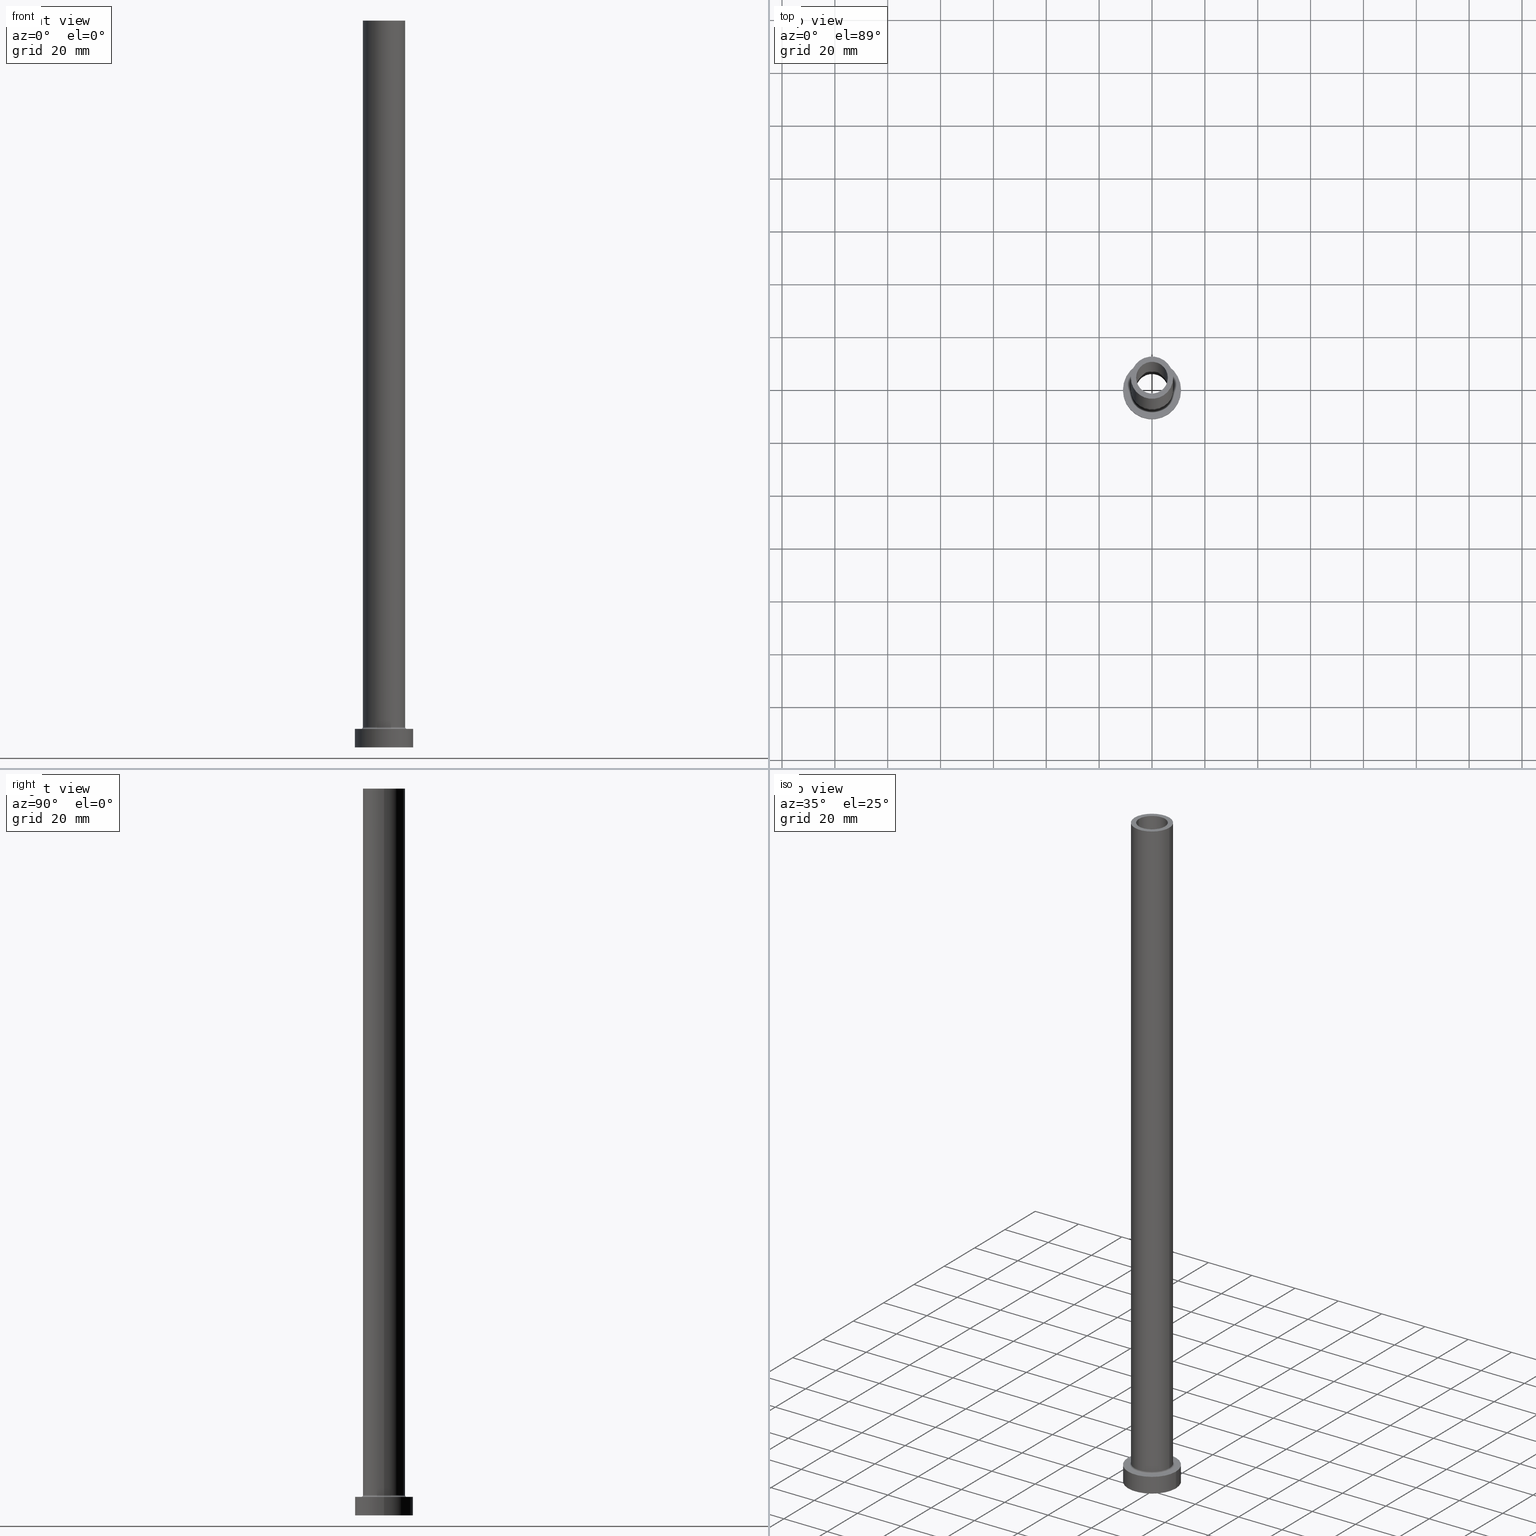
[diagram: canonical four-view strip — front | top / right | iso, engineering-drawing reading convention]
A machine part, canonical four-view strip (front | top / right | iso — engineering-drawing reading convention). The complete STEP part file that produces these views, byte-faithful:
ISO-10303-21;
HEADER;
FILE_DESCRIPTION (( 'STEP AP203' ),
    '1' );
FILE_NAME ('1a4f.STEP',
    '2023-02-13T09:07:13',
    ( '' ),
    ( '' ),
    'SwSTEP 2.0',
    'SolidWorks 2019',
    '' );
FILE_SCHEMA (( 'CONFIG_CONTROL_DESIGN' ));
ENDSEC;

DATA;
#1 = PERSON_AND_ORGANIZATION ( #346, #378 ) ;
#2 = DIRECTION ( 'NONE',  ( 1.000000000000000000, 0.000000000000000000, 0.000000000000000000 ) ) ;
#3 = APPROVAL_DATE_TIME ( #35, #198 ) ;
#4 = AXIS2_PLACEMENT_3D ( 'NONE', #70, #73, #251 ) ;
#5 = FACE_OUTER_BOUND ( 'NONE', #14, .T. ) ;
#6 = SECURITY_CLASSIFICATION_LEVEL ( 'unclassified' ) ;
#7 = DIRECTION ( 'NONE',  ( 1.000000000000000000, 0.000000000000000000, -0.000000000000000000 ) ) ;
#8 = CIRCLE ( 'NONE', #195, 6.000000000000000888 ) ;
#9 = CYLINDRICAL_SURFACE ( 'NONE', #86, 8.000000000000000000 ) ;
#10 = CARTESIAN_POINT ( 'NONE',  ( -8.000000000000000000, 0.000000000000000000, 275.0000000000000000 ) ) ;
#11 = CLOSED_SHELL ( 'NONE', ( #455, #233, #96, #51, #34, #279, #327, #56, #331, #113, #408, #417, #38, #168 ) ) ;
#12 = VERTEX_POINT ( 'NONE', #76 ) ;
#13 = DIRECTION ( 'NONE',  ( -1.000000000000000000, 0.000000000000000000, 0.000000000000000000 ) ) ;
#14 = EDGE_LOOP ( 'NONE', ( #61, #162 ) ) ;
#15 = AXIS2_PLACEMENT_3D ( 'NONE', #291, #157, #369 ) ;
#16 = CARTESIAN_POINT ( 'NONE',  ( 6.150000000000000355, 7.531577814756222064E-16, 230.0000000000000284 ) ) ;
#17 = DIRECTION ( 'NONE',  ( 0.000000000000000000, 0.000000000000000000, 1.000000000000000000 ) ) ;
#18 = DIRECTION ( 'NONE',  ( 0.000000000000000000, 0.000000000000000000, 1.000000000000000000 ) ) ;
#19 = DIRECTION ( 'NONE',  ( -0.000000000000000000, -0.000000000000000000, -1.000000000000000000 ) ) ;
#20 = ORIENTED_EDGE ( 'NONE', *, *, #82, .T. ) ;
#21 = LOCAL_TIME ( 10, 7, 13.00000000000000000, #109 ) ;
#22 = EDGE_CURVE ( 'NONE', #421, #307, #273, .T. ) ;
#23 = DIRECTION ( 'NONE',  ( 0.000000000000000000, 0.000000000000000000, -1.000000000000000000 ) ) ;
#24 = ORIENTED_EDGE ( 'NONE', *, *, #191, .T. ) ;
#25 = DIRECTION ( 'NONE',  ( 0.000000000000000000, 0.000000000000000000, 1.000000000000000000 ) ) ;
#26 = EDGE_LOOP ( 'NONE', ( #450, #149 ) ) ;
#27 = CIRCLE ( 'NONE', #144, 6.150000000000000355 ) ;
#28 = FACE_OUTER_BOUND ( 'NONE', #247, .T. ) ;
#29 = ORIENTED_EDGE ( 'NONE', *, *, #137, .T. ) ;
#30 = CIRCLE ( 'NONE', #219, 6.150000000000000355 ) ;
#31 = VERTEX_POINT ( 'NONE', #110 ) ;
#32 = DATE_AND_TIME ( #361, #339 ) ;
#33 = CARTESIAN_POINT ( 'NONE',  ( -11.00000000000000000, 0.000000000000000000, 0.000000000000000000 ) ) ;
#34 = ADVANCED_FACE ( 'NONE', ( #210 ), #314, .T. ) ;
#35 = DATE_AND_TIME ( #72, #230 ) ;
#36 = ORIENTED_EDGE ( 'NONE', *, *, #117, .F. ) ;
#37 = CC_DESIGN_SECURITY_CLASSIFICATION ( #83, ( #240 ) ) ;
#38 = ADVANCED_FACE ( 'NONE', ( #243, #174 ), #212, .F. ) ;
#39 = APPROVAL_STATUS ( 'not_yet_approved' ) ;
#40 = DIRECTION ( 'NONE',  ( 0.000000000000000000, 0.000000000000000000, -1.000000000000000000 ) ) ;
#41 = UNCERTAINTY_MEASURE_WITH_UNIT (LENGTH_MEASURE( 1.000000000000000082E-05 ), #448, 'distance_accuracy_value', 'NONE');
#42 = DIRECTION ( 'NONE',  ( 0.000000000000000000, 0.000000000000000000, 1.000000000000000000 ) ) ;
#43 = CARTESIAN_POINT ( 'NONE',  ( 0.000000000000000000, 0.000000000000000000, 275.0000000000000000 ) ) ;
#44 = CARTESIAN_POINT ( 'NONE',  ( 0.000000000000000000, 0.000000000000000000, 7.699999999999985079 ) ) ;
#45 = EDGE_CURVE ( 'NONE', #347, #160, #200, .T. ) ;
#46 = CARTESIAN_POINT ( 'NONE',  ( 0.000000000000000000, 0.000000000000000000, 275.0000000000000000 ) ) ;
#47 = DIRECTION ( 'NONE',  ( 0.000000000000000000, 0.000000000000000000, -1.000000000000000000 ) ) ;
#48 = DIRECTION ( 'NONE',  ( 1.000000000000000000, 0.000000000000000000, 0.000000000000000000 ) ) ;
#49 =( GEOMETRIC_REPRESENTATION_CONTEXT ( 3 ) GLOBAL_UNCERTAINTY_ASSIGNED_CONTEXT ( ( #41 ) ) GLOBAL_UNIT_ASSIGNED_CONTEXT ( ( #448, #309, #264 ) ) REPRESENTATION_CONTEXT ( 'NONE', 'WORKASPACE' ) );
#50 = LINE ( 'NONE', #10, #146 ) ;
#51 = ADVANCED_FACE ( 'NONE', ( #115 ), #9, .T. ) ;
#52 = FACE_BOUND ( 'NONE', #201, .T. ) ;
#53 = AXIS2_PLACEMENT_3D ( 'NONE', #396, #363, #356 ) ;
#54 = LINE ( 'NONE', #231, #98 ) ;
#55 = ORIENTED_EDGE ( 'NONE', *, *, #365, .T. ) ;
#56 = ADVANCED_FACE ( 'NONE', ( #282, #427 ), #432, .F. ) ;
#57 = CARTESIAN_POINT ( 'NONE',  ( 0.000000000000000000, 0.000000000000000000, 275.0000000000000000 ) ) ;
#58 = APPROVAL_PERSON_ORGANIZATION ( #276, #449, #211 ) ;
#59 = ORIENTED_EDGE ( 'NONE', *, *, #137, .F. ) ;
#60 = DIRECTION ( 'NONE',  ( 0.000000000000000000, 0.000000000000000000, 1.000000000000000000 ) ) ;
#61 = ORIENTED_EDGE ( 'NONE', *, *, #22, .T. ) ;
#62 = CIRCLE ( 'NONE', #188, 11.00000000000000000 ) ;
#63 = CARTESIAN_POINT ( 'NONE',  ( -11.00000000000000000, 0.000000000000000000, 7.000000000000000000 ) ) ;
#64 = VERTEX_POINT ( 'NONE', #359 ) ;
#65 = CARTESIAN_POINT ( 'NONE',  ( -6.150000000000000355, 0.000000000000000000, 230.0000000000000284 ) ) ;
#66 = VERTEX_POINT ( 'NONE', #33 ) ;
#67 = CIRCLE ( 'NONE', #430, 0.7000000000000000666 ) ;
#68 = PERSON_AND_ORGANIZATION ( #346, #378 ) ;
#69 = CARTESIAN_POINT ( 'NONE',  ( 11.00000000000000000, 1.347111479062088405E-15, 7.000000000000000000 ) ) ;
#70 = CARTESIAN_POINT ( 'NONE',  ( 0.000000000000000000, 0.000000000000000000, 0.000000000000000000 ) ) ;
#71 = CC_DESIGN_DATE_AND_TIME_ASSIGNMENT ( #32, #176, ( #83 ) ) ;
#72 = CALENDAR_DATE ( 2023, 13, 2 ) ;
#73 = DIRECTION ( 'NONE',  ( 0.000000000000000000, 0.000000000000000000, 1.000000000000000000 ) ) ;
#74 = AXIS2_PLACEMENT_3D ( 'NONE', #364, #326, #13 ) ;
#75 = EDGE_CURVE ( 'NONE', #64, #295, #288, .T. ) ;
#76 = CARTESIAN_POINT ( 'NONE',  ( -8.000000000000000000, 0.000000000000000000, 7.699999999999985079 ) ) ;
#77 = AXIS2_PLACEMENT_3D ( 'NONE', #360, #285, #145 ) ;
#78 = PERSON_AND_ORGANIZATION ( #346, #378 ) ;
#79 = CARTESIAN_POINT ( 'NONE',  ( 0.000000000000000000, 0.000000000000000000, 7.000000000000000000 ) ) ;
#80 = EDGE_CURVE ( 'NONE', #66, #394, #62, .T. ) ;
#81 = LINE ( 'NONE', #63, #332 ) ;
#82 = EDGE_CURVE ( 'NONE', #31, #267, #123, .T. ) ;
#83 = SECURITY_CLASSIFICATION ( '', '', #6 ) ;
#84 = CARTESIAN_POINT ( 'NONE',  ( 8.699999999999999289, 0.000000000000000000, 7.699999999999985079 ) ) ;
#85 = CARTESIAN_POINT ( 'NONE',  ( -11.00000000000000000, 0.000000000000000000, 7.000000000000000000 ) ) ;
#86 = AXIS2_PLACEMENT_3D ( 'NONE', #43, #107, #391 ) ;
#87 = CARTESIAN_POINT ( 'NONE',  ( -6.000000000000000888, 0.000000000000000000, 230.0000000000000284 ) ) ;
#88 = ORIENTED_EDGE ( 'NONE', *, *, #45, .T. ) ;
#89 = AXIS2_PLACEMENT_3D ( 'NONE', #46, #47, #330 ) ;
#90 = APPLICATION_CONTEXT ( 'configuration controlled 3d designs of mechanical parts and assemblies' ) ;
#91 = CIRCLE ( 'NONE', #269, 8.000000000000000000 ) ;
#92 = DIRECTION ( 'NONE',  ( 1.000000000000000000, 0.000000000000000000, 0.000000000000000000 ) ) ;
#93 = CARTESIAN_POINT ( 'NONE',  ( 6.150000000000000355, 7.531577814756222064E-16, 247.3948268171891129 ) ) ;
#94 = DIRECTION ( 'NONE',  ( -1.000000000000000000, 0.000000000000000000, 0.000000000000000000 ) ) ;
#95 = ORIENTED_EDGE ( 'NONE', *, *, #237, .T. ) ;
#96 = ADVANCED_FACE ( 'NONE', ( #241 ), #456, .F. ) ;
#97 = CARTESIAN_POINT ( 'NONE',  ( 0.000000000000000000, 0.000000000000000000, 7.000000000000000000 ) ) ;
#98 = VECTOR ( 'NONE', #272, 1000.000000000000000 ) ;
#99 = ORIENTED_EDGE ( 'NONE', *, *, #425, .F. ) ;
#100 = DIRECTION ( 'NONE',  ( -0.000000000000000000, -0.000000000000000000, -1.000000000000000000 ) ) ;
#101 = EDGE_LOOP ( 'NONE', ( #352, #29, #24, #290 ) ) ;
#102 = DIRECTION ( 'NONE',  ( -1.000000000000000000, 0.000000000000000000, 0.000000000000000000 ) ) ;
#103 = ORIENTED_EDGE ( 'NONE', *, *, #172, .T. ) ;
#104 = CALENDAR_DATE ( 2023, 13, 2 ) ;
#105 = DIRECTION ( 'NONE',  ( 1.000000000000000000, 0.000000000000000000, 0.000000000000000000 ) ) ;
#106 = AXIS2_PLACEMENT_3D ( 'NONE', #182, #226, #296 ) ;
#107 = DIRECTION ( 'NONE',  ( -0.000000000000000000, -0.000000000000000000, -1.000000000000000000 ) ) ;
#108 = AXIS2_PLACEMENT_3D ( 'NONE', #354, #318, #147 ) ;
#109 = COORDINATED_UNIVERSAL_TIME_OFFSET ( 1, 0, .AHEAD. ) ;
#110 = CARTESIAN_POINT ( 'NONE',  ( -8.699999999999999289, 1.065442715258197248E-15, 6.999999999999992006 ) ) ;
#111 = COORDINATED_UNIVERSAL_TIME_OFFSET ( 1, 0, .AHEAD. ) ;
#112 = CIRCLE ( 'NONE', #158, 0.6999999999999992895 ) ;
#113 = ADVANCED_FACE ( 'NONE', ( #320, #5 ), #171, .T. ) ;
#114 = APPROVAL_ROLE ( '' ) ;
#115 = FACE_OUTER_BOUND ( 'NONE', #410, .T. ) ;
#116 = AXIS2_PLACEMENT_3D ( 'NONE', #428, #323, #7 ) ;
#117 = EDGE_CURVE ( 'NONE', #443, #12, #434, .T. ) ;
#118 = DIRECTION ( 'NONE',  ( 1.000000000000000000, 0.000000000000000000, 0.000000000000000000 ) ) ;
#119 = DIRECTION ( 'NONE',  ( 1.000000000000000000, 0.000000000000000000, 0.000000000000000000 ) ) ;
#120 = CIRCLE ( 'NONE', #308, 8.000000000000000000 ) ;
#121 = DIRECTION ( 'NONE',  ( -1.000000000000000000, 1.224646799147353207E-16, 0.000000000000000000 ) ) ;
#122 = CYLINDRICAL_SURFACE ( 'NONE', #74, 11.00000000000000000 ) ;
#123 = CIRCLE ( 'NONE', #170, 8.699999999999999289 ) ;
#124 = CARTESIAN_POINT ( 'NONE',  ( 0.000000000000000000, 0.000000000000000000, 7.699999999999985079 ) ) ;
#125 = AXIS2_PLACEMENT_3D ( 'NONE', #293, #442, #398 ) ;
#126 = DIRECTION ( 'NONE',  ( -0.000000000000000000, -0.000000000000000000, -1.000000000000000000 ) ) ;
#127 = ORIENTED_EDGE ( 'NONE', *, *, #386, .T. ) ;
#128 = CARTESIAN_POINT ( 'NONE',  ( -8.000000000000000000, 0.000000000000000000, 275.0000000000000000 ) ) ;
#129 = EDGE_LOOP ( 'NONE', ( #204, #419, #292, #169 ) ) ;
#130 = DIRECTION ( 'NONE',  ( 1.000000000000000000, 0.000000000000000000, 0.000000000000000000 ) ) ;
#131 = CIRCLE ( 'NONE', #125, 6.000000000000000888 ) ;
#132 = ORIENTED_EDGE ( 'NONE', *, *, #194, .T. ) ;
#133 = CYLINDRICAL_SURFACE ( 'NONE', #414, 6.000000000000000888 ) ;
#134 = ORIENTED_EDGE ( 'NONE', *, *, #249, .F. ) ;
#135 = CALENDAR_DATE ( 2023, 13, 2 ) ;
#136 = ORIENTED_EDGE ( 'NONE', *, *, #340, .T. ) ;
#137 = EDGE_CURVE ( 'NONE', #416, #394, #387, .T. ) ;
#138 = PERSON_AND_ORGANIZATION ( #346, #378 ) ;
#139 = DIRECTION ( 'NONE',  ( 0.000000000000000000, 0.000000000000000000, 1.000000000000000000 ) ) ;
#140 = CARTESIAN_POINT ( 'NONE',  ( 0.000000000000000000, 0.000000000000000000, 230.0000000000000284 ) ) ;
#141 = APPROVAL_STATUS ( 'not_yet_approved' ) ;
#142 = DIRECTION ( 'NONE',  ( 1.000000000000000000, 0.000000000000000000, 0.000000000000000000 ) ) ;
#143 = COORDINATED_UNIVERSAL_TIME_OFFSET ( 1, 0, .AHEAD. ) ;
#144 = AXIS2_PLACEMENT_3D ( 'NONE', #189, #17, #184 ) ;
#145 = DIRECTION ( 'NONE',  ( -1.000000000000000000, 0.000000000000000000, 0.000000000000000000 ) ) ;
#146 = VECTOR ( 'NONE', #260, 1000.000000000000000 ) ;
#147 = DIRECTION ( 'NONE',  ( 1.000000000000000000, 0.000000000000000000, -0.000000000000000000 ) ) ;
#148 = DIRECTION ( 'NONE',  ( 0.000000000000000000, 0.000000000000000000, -1.000000000000000000 ) ) ;
#149 = ORIENTED_EDGE ( 'NONE', *, *, #275, .F. ) ;
#150 = CC_DESIGN_PERSON_AND_ORGANIZATION_ASSIGNMENT ( #1, #319, ( #240 ) ) ;
#151 = PLANE ( 'NONE',  #15 ) ;
#152 = EDGE_LOOP ( 'NONE', ( #223, #412 ) ) ;
#153 = DIRECTION ( 'NONE',  ( 0.000000000000000000, 0.000000000000000000, 1.000000000000000000 ) ) ;
#154 = EDGE_CURVE ( 'NONE', #64, #380, #165, .T. ) ;
#155 = DIRECTION ( 'NONE',  ( 1.000000000000000000, 0.000000000000000000, 0.000000000000000000 ) ) ;
#156 = EDGE_LOOP ( 'NONE', ( #383, #103, #335, #382 ) ) ;
#157 = DIRECTION ( 'NONE',  ( 0.000000000000000000, 0.000000000000000000, 1.000000000000000000 ) ) ;
#158 = AXIS2_PLACEMENT_3D ( 'NONE', #258, #254, #121 ) ;
#159 = DIRECTION ( 'NONE',  ( 1.000000000000000000, 0.000000000000000000, 0.000000000000000000 ) ) ;
#160 = VERTEX_POINT ( 'NONE', #16 ) ;
#161 = CARTESIAN_POINT ( 'NONE',  ( 6.150000000000000355, 7.531577814756222064E-16, 0.000000000000000000 ) ) ;
#162 = ORIENTED_EDGE ( 'NONE', *, *, #249, .T. ) ;
#163 = CARTESIAN_POINT ( 'NONE',  ( 0.000000000000000000, 0.000000000000000000, 230.0000000000000284 ) ) ;
#164 = ORIENTED_EDGE ( 'NONE', *, *, #321, .T. ) ;
#165 = CIRCLE ( 'NONE', #429, 6.000000000000000888 ) ;
#166 = CC_DESIGN_APPROVAL ( #449, ( #83 ) ) ;
#167 = VERTEX_POINT ( 'NONE', #85 ) ;
#168 = ADVANCED_FACE ( 'NONE', ( #366 ), #218, .F. ) ;
#169 = ORIENTED_EDGE ( 'NONE', *, *, #365, .F. ) ;
#170 = AXIS2_PLACEMENT_3D ( 'NONE', #79, #284, #105 ) ;
#171 = PLANE ( 'NONE',  #116 ) ;
#172 = EDGE_CURVE ( 'NONE', #160, #347, #27, .T. ) ;
#173 = PERSON_AND_ORGANIZATION ( #346, #378 ) ;
#174 = FACE_OUTER_BOUND ( 'NONE', #344, .T. ) ;
#175 = APPROVAL_PERSON_ORGANIZATION ( #173, #246, #114 ) ;
#176 = DATE_TIME_ROLE ( 'classification_date' ) ;
#177 = DIRECTION ( 'NONE',  ( 0.000000000000000000, 0.000000000000000000, 1.000000000000000000 ) ) ;
#178 = PERSON_AND_ORGANIZATION_ROLE ( 'design_owner' ) ;
#179 = CARTESIAN_POINT ( 'NONE',  ( -6.000000000000000888, 0.000000000000000000, 275.0000000000000000 ) ) ;
#180 = DIRECTION ( 'NONE',  ( 0.000000000000000000, 0.000000000000000000, 1.000000000000000000 ) ) ;
#181 = CC_DESIGN_APPROVAL ( #246, ( #420 ) ) ;
#182 = CARTESIAN_POINT ( 'NONE',  ( 0.000000000000000000, 0.000000000000000000, 247.3948268171891129 ) ) ;
#183 = FACE_OUTER_BOUND ( 'NONE', #300, .T. ) ;
#184 = DIRECTION ( 'NONE',  ( 1.000000000000000000, 0.000000000000000000, 0.000000000000000000 ) ) ;
#185 = ORIENTED_EDGE ( 'NONE', *, *, #22, .F. ) ;
#186 = CARTESIAN_POINT ( 'NONE',  ( 0.000000000000000000, 0.000000000000000000, 275.0000000000000000 ) ) ;
#187 = EDGE_CURVE ( 'NONE', #347, #439, #433, .T. ) ;
#188 = AXIS2_PLACEMENT_3D ( 'NONE', #389, #177, #142 ) ;
#189 = CARTESIAN_POINT ( 'NONE',  ( 0.000000000000000000, 0.000000000000000000, 230.0000000000000284 ) ) ;
#190 = CC_DESIGN_DATE_AND_TIME_ASSIGNMENT ( #355, #388, ( #420 ) ) ;
#191 = EDGE_CURVE ( 'NONE', #394, #66, #444, .T. ) ;
#192 = DIRECTION ( 'NONE',  ( 0.000000000000000000, 0.000000000000000000, -1.000000000000000000 ) ) ;
#193 = ORIENTED_EDGE ( 'NONE', *, *, #321, .F. ) ;
#194 = EDGE_CURVE ( 'NONE', #295, #217, #298, .T. ) ;
#195 = AXIS2_PLACEMENT_3D ( 'NONE', #163, #60, #446 ) ;
#196 = CARTESIAN_POINT ( 'NONE',  ( 0.000000000000000000, 0.000000000000000000, 0.000000000000000000 ) ) ;
#197 = ORIENTED_EDGE ( 'NONE', *, *, #187, .F. ) ;
#198 = APPROVAL ( #395, 'NEUR�EN�' ) ;
#199 = DIRECTION ( 'NONE',  ( -0.000000000000000000, -0.000000000000000000, -1.000000000000000000 ) ) ;
#200 = CIRCLE ( 'NONE', #221, 6.150000000000000355 ) ;
#201 = EDGE_LOOP ( 'NONE', ( #271, #20 ) ) ;
#202 = MANIFOLD_SOLID_BREP ( 'Odebrat vysunut�m4', #11 ) ;
#203 = CARTESIAN_POINT ( 'NONE',  ( 11.00000000000000000, 1.347111479062088405E-15, 7.000000000000000000 ) ) ;
#204 = ORIENTED_EDGE ( 'NONE', *, *, #368, .F. ) ;
#205 = AXIS2_PLACEMENT_3D ( 'NONE', #220, #370, #48 ) ;
#206 = CARTESIAN_POINT ( 'NONE',  ( 6.000000000000000888, 7.347880794884119736E-16, 275.0000000000000000 ) ) ;
#207 = ORIENTED_EDGE ( 'NONE', *, *, #368, .T. ) ;
#208 = DIRECTION ( 'NONE',  ( -0.000000000000000000, -0.000000000000000000, -1.000000000000000000 ) ) ;
#209 = PERSON_AND_ORGANIZATION ( #346, #378 ) ;
#210 = FACE_OUTER_BOUND ( 'NONE', #101, .T. ) ;
#211 = APPROVAL_ROLE ( '' ) ;
#212 = PLANE ( 'NONE',  #108 ) ;
#213 = CC_DESIGN_PERSON_AND_ORGANIZATION_ASSIGNMENT ( #68, #353, ( #83 ) ) ;
#214 = DIRECTION ( 'NONE',  ( 0.000000000000000000, 0.000000000000000000, 1.000000000000000000 ) ) ;
#215 = VECTOR ( 'NONE', #40, 1000.000000000000000 ) ;
#216 = DATE_AND_TIME ( #135, #263 ) ;
#217 = VERTEX_POINT ( 'NONE', #401 ) ;
#218 = CYLINDRICAL_SURFACE ( 'NONE', #89, 6.000000000000000888 ) ;
#219 = AXIS2_PLACEMENT_3D ( 'NONE', #415, #100, #159 ) ;
#220 = CARTESIAN_POINT ( 'NONE',  ( 0.000000000000000000, 0.000000000000000000, 0.000000000000000000 ) ) ;
#221 = AXIS2_PLACEMENT_3D ( 'NONE', #140, #139, #2 ) ;
#222 = FACE_OUTER_BOUND ( 'NONE', #338, .T. ) ;
#223 = ORIENTED_EDGE ( 'NONE', *, *, #80, .F. ) ;
#224 = CARTESIAN_POINT ( 'NONE',  ( 8.000000000000000000, 9.797174393178825657E-16, 275.0000000000000000 ) ) ;
#225 = AXIS2_PLACEMENT_3D ( 'NONE', #196, #228, #299 ) ;
#226 = DIRECTION ( 'NONE',  ( 0.000000000000000000, 0.000000000000000000, -1.000000000000000000 ) ) ;
#227 = ORIENTED_EDGE ( 'NONE', *, *, #82, .F. ) ;
#228 = DIRECTION ( 'NONE',  ( -0.000000000000000000, -0.000000000000000000, -1.000000000000000000 ) ) ;
#229 = ORIENTED_EDGE ( 'NONE', *, *, #294, .F. ) ;
#230 = LOCAL_TIME ( 10, 7, 13.00000000000000000, #111 ) ;
#231 = CARTESIAN_POINT ( 'NONE',  ( 6.000000000000000888, 7.347880794884119736E-16, 275.0000000000000000 ) ) ;
#232 = EDGE_LOOP ( 'NONE', ( #436, #36, #305, #227 ) ) ;
#233 = ADVANCED_FACE ( 'NONE', ( #183 ), #289, .F. ) ;
#234 = APPLICATION_CONTEXT ( 'configuration controlled 3d designs of mechanical parts and assemblies' ) ;
#235 = CARTESIAN_POINT ( 'NONE',  ( -6.150000000000000355, 0.000000000000000000, 0.000000000000000000 ) ) ;
#236 = ORIENTED_EDGE ( 'NONE', *, *, #237, .F. ) ;
#237 = EDGE_CURVE ( 'NONE', #421, #12, #50, .T. ) ;
#238 = CARTESIAN_POINT ( 'NONE',  ( 11.00000000000000000, 1.347111479062088405E-15, 0.000000000000000000 ) ) ;
#239 = EDGE_LOOP ( 'NONE', ( #375, #185, #95, #164 ) ) ;
#240 = PRODUCT_DEFINITION_FORMATION_WITH_SPECIFIED_SOURCE ( 'LIBOVOLN�', '', #261, .NOT_KNOWN. ) ;
#241 = FACE_OUTER_BOUND ( 'NONE', #268, .T. ) ;
#242 = MECHANICAL_CONTEXT ( 'NONE', #234, 'mechanical' ) ;
#243 = FACE_BOUND ( 'NONE', #281, .T. ) ;
#244 = EDGE_CURVE ( 'NONE', #267, #31, #286, .T. ) ;
#245 = ORIENTED_EDGE ( 'NONE', *, *, #244, .F. ) ;
#246 = APPROVAL ( #141, 'NEUR�EN�' ) ;
#247 = EDGE_LOOP ( 'NONE', ( #342, #207, #297, #403 ) ) ;
#248 = AXIS2_PLACEMENT_3D ( 'NONE', #266, #453, #418 ) ;
#249 = EDGE_CURVE ( 'NONE', #307, #421, #91, .T. ) ;
#250 = PERSON_AND_ORGANIZATION_ROLE ( 'creator' ) ;
#251 = DIRECTION ( 'NONE',  ( 1.000000000000000000, 0.000000000000000000, -0.000000000000000000 ) ) ;
#252 = DIRECTION ( 'NONE',  ( -0.000000000000000000, -0.000000000000000000, -1.000000000000000000 ) ) ;
#253 = AXIS2_PLACEMENT_3D ( 'NONE', #44, #180, #324 ) ;
#254 = DIRECTION ( 'NONE',  ( 1.224646799147353207E-16, 1.000000000000000000, -0.000000000000000000 ) ) ;
#255 = AXIS2_PLACEMENT_3D ( 'NONE', #97, #25, #306 ) ;
#256 = CIRCLE ( 'NONE', #225, 6.150000000000000355 ) ;
#257 = DIRECTION ( 'NONE',  ( 0.000000000000000000, -1.000000000000000000, 0.000000000000000000 ) ) ;
#258 = CARTESIAN_POINT ( 'NONE',  ( -8.699999999999999289, 1.065442715258197248E-15, 7.699999999999985079 ) ) ;
#259 = ORIENTED_EDGE ( 'NONE', *, *, #329, .T. ) ;
#260 = DIRECTION ( 'NONE',  ( -0.000000000000000000, -0.000000000000000000, -1.000000000000000000 ) ) ;
#261 = PRODUCT ( '1a4f', '1a4f', '', ( #242 ) ) ;
#262 = AXIS2_PLACEMENT_3D ( 'NONE', #438, #153, #118 ) ;
#263 = LOCAL_TIME ( 10, 7, 13.00000000000000000, #317 ) ;
#264 =( NAMED_UNIT ( * ) SI_UNIT ( $, .STERADIAN. ) SOLID_ANGLE_UNIT ( ) );
#265 = AXIS2_PLACEMENT_3D ( 'NONE', #424, #214, #460 ) ;
#266 = CARTESIAN_POINT ( 'NONE',  ( 0.000000000000000000, 0.000000000000000000, 7.000000000000000000 ) ) ;
#267 = VERTEX_POINT ( 'NONE', #333 ) ;
#268 = EDGE_LOOP ( 'NONE', ( #193, #274, #245, #229 ) ) ;
#269 = AXIS2_PLACEMENT_3D ( 'NONE', #186, #328, #92 ) ;
#270 = CYLINDRICAL_SURFACE ( 'NONE', #445, 6.150000000000000355 ) ;
#271 = ORIENTED_EDGE ( 'NONE', *, *, #244, .T. ) ;
#272 = DIRECTION ( 'NONE',  ( 0.000000000000000000, 0.000000000000000000, -1.000000000000000000 ) ) ;
#273 = CIRCLE ( 'NONE', #265, 8.000000000000000000 ) ;
#274 = ORIENTED_EDGE ( 'NONE', *, *, #283, .T. ) ;
#275 = EDGE_CURVE ( 'NONE', #380, #64, #131, .T. ) ;
#276 = PERSON_AND_ORGANIZATION ( #346, #378 ) ;
#277 = ORIENTED_EDGE ( 'NONE', *, *, #413, .T. ) ;
#278 = PERSON_AND_ORGANIZATION ( #346, #378 ) ;
#279 = ADVANCED_FACE ( 'NONE', ( #222 ), #122, .T. ) ;
#280 = CC_DESIGN_APPROVAL ( #198, ( #240 ) ) ;
#281 = EDGE_LOOP ( 'NONE', ( #132, #55 ) ) ;
#282 = FACE_BOUND ( 'NONE', #310, .T. ) ;
#283 = EDGE_CURVE ( 'NONE', #12, #31, #112, .T. ) ;
#284 = DIRECTION ( 'NONE',  ( -0.000000000000000000, -0.000000000000000000, -1.000000000000000000 ) ) ;
#285 = DIRECTION ( 'NONE',  ( -0.000000000000000000, -0.000000000000000000, -1.000000000000000000 ) ) ;
#286 = CIRCLE ( 'NONE', #357, 8.699999999999999289 ) ;
#287 = CC_DESIGN_PERSON_AND_ORGANIZATION_ASSIGNMENT ( #209, #250, ( #420 ) ) ;
#288 = LINE ( 'NONE', #179, #215 ) ;
#289 = CYLINDRICAL_SURFACE ( 'NONE', #106, 6.150000000000000355 ) ;
#290 = ORIENTED_EDGE ( 'NONE', *, *, #329, .F. ) ;
#291 = CARTESIAN_POINT ( 'NONE',  ( 0.000000000000000000, 0.000000000000000000, 7.000000000000000000 ) ) ;
#292 = ORIENTED_EDGE ( 'NONE', *, *, #75, .T. ) ;
#293 = CARTESIAN_POINT ( 'NONE',  ( 0.000000000000000000, 0.000000000000000000, 275.0000000000000000 ) ) ;
#294 = EDGE_CURVE ( 'NONE', #443, #267, #67, .T. ) ;
#295 = VERTEX_POINT ( 'NONE', #87 ) ;
#296 = DIRECTION ( 'NONE',  ( -1.000000000000000000, 0.000000000000000000, 0.000000000000000000 ) ) ;
#297 = ORIENTED_EDGE ( 'NONE', *, *, #194, .F. ) ;
#298 = CIRCLE ( 'NONE', #262, 6.000000000000000888 ) ;
#299 = DIRECTION ( 'NONE',  ( 1.000000000000000000, 0.000000000000000000, 0.000000000000000000 ) ) ;
#300 = EDGE_LOOP ( 'NONE', ( #88, #127, #136, #197 ) ) ;
#301 = AXIS2_PLACEMENT_3D ( 'NONE', #431, #42, #426 ) ;
#302 = LINE ( 'NONE', #93, #392 ) ;
#303 = ORIENTED_EDGE ( 'NONE', *, *, #80, .T. ) ;
#304 = CYLINDRICAL_SURFACE ( 'NONE', #350, 8.000000000000000000 ) ;
#305 = ORIENTED_EDGE ( 'NONE', *, *, #294, .T. ) ;
#306 = DIRECTION ( 'NONE',  ( 1.000000000000000000, 0.000000000000000000, 0.000000000000000000 ) ) ;
#307 = VERTEX_POINT ( 'NONE', #224 ) ;
#308 = AXIS2_PLACEMENT_3D ( 'NONE', #124, #18, #405 ) ;
#309 =( NAMED_UNIT ( * ) PLANE_ANGLE_UNIT ( ) SI_UNIT ( $, .RADIAN. ) );
#310 = EDGE_LOOP ( 'NONE', ( #99, #312 ) ) ;
#311 = APPLICATION_PROTOCOL_DEFINITION ( 'international standard', 'config_control_design', 1994, #234 ) ;
#312 = ORIENTED_EDGE ( 'NONE', *, *, #340, .F. ) ;
#313 = COORDINATED_UNIVERSAL_TIME_OFFSET ( 1, 0, .AHEAD. ) ;
#314 = CYLINDRICAL_SURFACE ( 'NONE', #77, 11.00000000000000000 ) ;
#315 = CC_DESIGN_PERSON_AND_ORGANIZATION_ASSIGNMENT ( #78, #322, ( #240 ) ) ;
#316 = LOCAL_TIME ( 10, 7, 13.00000000000000000, #313 ) ;
#317 = COORDINATED_UNIVERSAL_TIME_OFFSET ( 1, 0, .AHEAD. ) ;
#318 = DIRECTION ( 'NONE',  ( 0.000000000000000000, 0.000000000000000000, 1.000000000000000000 ) ) ;
#319 = PERSON_AND_ORGANIZATION_ROLE ( 'creator' ) ;
#320 = FACE_BOUND ( 'NONE', #26, .T. ) ;
#321 = EDGE_CURVE ( 'NONE', #12, #443, #120, .T. ) ;
#322 = PERSON_AND_ORGANIZATION_ROLE ( 'design_supplier' ) ;
#323 = DIRECTION ( 'NONE',  ( 0.000000000000000000, 0.000000000000000000, 1.000000000000000000 ) ) ;
#324 = DIRECTION ( 'NONE',  ( 1.000000000000000000, 0.000000000000000000, 0.000000000000000000 ) ) ;
#325 = VECTOR ( 'NONE', #199, 1000.000000000000000 ) ;
#326 = DIRECTION ( 'NONE',  ( -0.000000000000000000, -0.000000000000000000, -1.000000000000000000 ) ) ;
#327 = ADVANCED_FACE ( 'NONE', ( #52, #334 ), #151, .T. ) ;
#328 = DIRECTION ( 'NONE',  ( 0.000000000000000000, 0.000000000000000000, 1.000000000000000000 ) ) ;
#329 = EDGE_CURVE ( 'NONE', #167, #66, #81, .T. ) ;
#330 = DIRECTION ( 'NONE',  ( -1.000000000000000000, 0.000000000000000000, 0.000000000000000000 ) ) ;
#331 = ADVANCED_FACE ( 'NONE', ( #343 ), #304, .T. ) ;
#332 = VECTOR ( 'NONE', #19, 1000.000000000000000 ) ;
#333 = CARTESIAN_POINT ( 'NONE',  ( 8.699999999999999289, 0.000000000000000000, 6.999999999999992006 ) ) ;
#334 = FACE_OUTER_BOUND ( 'NONE', #367, .T. ) ;
#335 = ORIENTED_EDGE ( 'NONE', *, *, #187, .T. ) ;
#336 = PRODUCT_RELATED_PRODUCT_CATEGORY ( 'detail', '', ( #261 ) ) ;
#337 = CARTESIAN_POINT ( 'NONE',  ( 0.000000000000000000, 0.000000000000000000, 247.3948268171891129 ) ) ;
#338 = EDGE_LOOP ( 'NONE', ( #59, #447, #259, #303 ) ) ;
#339 = LOCAL_TIME ( 10, 7, 13.00000000000000000, #143 ) ;
#340 = EDGE_CURVE ( 'NONE', #458, #439, #256, .T. ) ;
#341 = FACE_OUTER_BOUND ( 'NONE', #232, .T. ) ;
#342 = ORIENTED_EDGE ( 'NONE', *, *, #154, .T. ) ;
#343 = FACE_OUTER_BOUND ( 'NONE', #239, .T. ) ;
#344 = EDGE_LOOP ( 'NONE', ( #441, #377 ) ) ;
#345 = DIRECTION ( 'NONE',  ( 0.000000000000000000, 0.000000000000000000, -1.000000000000000000 ) ) ;
#346 = PERSON ( 'NEUR�EN�', 'NEUR�EN�', 'NEUR�EN�', ('NEUR�EN�'), ('NEUR�EN�'), ('NEUR�EN�') ) ;
#347 = VERTEX_POINT ( 'NONE', #65 ) ;
#348 = VECTOR ( 'NONE', #208, 1000.000000000000000 ) ;
#349 = PRODUCT_DEFINITION_SHAPE ( 'NONE', 'NONE',  #420 ) ;
#350 = AXIS2_PLACEMENT_3D ( 'NONE', #409, #126, #351 ) ;
#351 = DIRECTION ( 'NONE',  ( -1.000000000000000000, 0.000000000000000000, 0.000000000000000000 ) ) ;
#352 = ORIENTED_EDGE ( 'NONE', *, *, #413, .F. ) ;
#353 = PERSON_AND_ORGANIZATION_ROLE ( 'classification_officer' ) ;
#354 = CARTESIAN_POINT ( 'NONE',  ( 0.000000000000000000, 0.000000000000000000, 230.0000000000000284 ) ) ;
#355 = DATE_AND_TIME ( #390, #21 ) ;
#356 = DIRECTION ( 'NONE',  ( 1.000000000000000000, 0.000000000000000000, 0.000000000000000000 ) ) ;
#357 = AXIS2_PLACEMENT_3D ( 'NONE', #440, #252, #155 ) ;
#358 = SHAPE_DEFINITION_REPRESENTATION ( #349, #400 ) ;
#359 = CARTESIAN_POINT ( 'NONE',  ( -6.000000000000000888, 0.000000000000000000, 275.0000000000000000 ) ) ;
#360 = CARTESIAN_POINT ( 'NONE',  ( 0.000000000000000000, 0.000000000000000000, 7.000000000000000000 ) ) ;
#361 = CALENDAR_DATE ( 2023, 13, 2 ) ;
#362 = EDGE_CURVE ( 'NONE', #307, #443, #374, .T. ) ;
#363 = DIRECTION ( 'NONE',  ( 0.000000000000000000, 0.000000000000000000, 1.000000000000000000 ) ) ;
#364 = CARTESIAN_POINT ( 'NONE',  ( 0.000000000000000000, 0.000000000000000000, 7.000000000000000000 ) ) ;
#365 = EDGE_CURVE ( 'NONE', #217, #295, #8, .T. ) ;
#366 = FACE_OUTER_BOUND ( 'NONE', #129, .T. ) ;
#367 = EDGE_LOOP ( 'NONE', ( #406, #277 ) ) ;
#368 = EDGE_CURVE ( 'NONE', #380, #217, #54, .T. ) ;
#369 = DIRECTION ( 'NONE',  ( 1.000000000000000000, 0.000000000000000000, -0.000000000000000000 ) ) ;
#370 = DIRECTION ( 'NONE',  ( 0.000000000000000000, 0.000000000000000000, 1.000000000000000000 ) ) ;
#371 = TOROIDAL_SURFACE ( 'NONE', #384, 8.699999999999999289, 0.6999999999999999556 ) ;
#372 = DIRECTION ( 'NONE',  ( 0.000000000000000000, 0.000000000000000000, 1.000000000000000000 ) ) ;
#373 = EDGE_CURVE ( 'NONE', #167, #416, #461, .T. ) ;
#374 = LINE ( 'NONE', #379, #325 ) ;
#375 = ORIENTED_EDGE ( 'NONE', *, *, #362, .F. ) ;
#376 = FACE_OUTER_BOUND ( 'NONE', #156, .T. ) ;
#377 = ORIENTED_EDGE ( 'NONE', *, *, #172, .F. ) ;
#378 = ORGANIZATION ( 'NEUR�EN�', 'NEUR�EN�', '' ) ;
#379 = CARTESIAN_POINT ( 'NONE',  ( 8.000000000000000000, 9.797174393178825657E-16, 275.0000000000000000 ) ) ;
#380 = VERTEX_POINT ( 'NONE', #206 ) ;
#381 = CARTESIAN_POINT ( 'NONE',  ( 8.000000000000000000, 9.797174393178825657E-16, 7.699999999999985079 ) ) ;
#382 = ORIENTED_EDGE ( 'NONE', *, *, #425, .T. ) ;
#383 = ORIENTED_EDGE ( 'NONE', *, *, #386, .F. ) ;
#384 = AXIS2_PLACEMENT_3D ( 'NONE', #451, #407, #130 ) ;
#385 = APPROVAL_DATE_TIME ( #216, #246 ) ;
#386 = EDGE_CURVE ( 'NONE', #160, #458, #302, .T. ) ;
#387 = LINE ( 'NONE', #69, #348 ) ;
#388 = DATE_TIME_ROLE ( 'creation_date' ) ;
#389 = CARTESIAN_POINT ( 'NONE',  ( 0.000000000000000000, 0.000000000000000000, 0.000000000000000000 ) ) ;
#390 = CALENDAR_DATE ( 2023, 13, 2 ) ;
#391 = DIRECTION ( 'NONE',  ( -1.000000000000000000, 0.000000000000000000, 0.000000000000000000 ) ) ;
#392 = VECTOR ( 'NONE', #192, 1000.000000000000000 ) ;
#393 = DATE_AND_TIME ( #104, #316 ) ;
#394 = VERTEX_POINT ( 'NONE', #238 ) ;
#395 = APPROVAL_STATUS ( 'not_yet_approved' ) ;
#396 = CARTESIAN_POINT ( 'NONE',  ( 0.000000000000000000, 0.000000000000000000, 7.699999999999985079 ) ) ;
#397 = CARTESIAN_POINT ( 'NONE',  ( -6.150000000000000355, 0.000000000000000000, 247.3948268171891129 ) ) ;
#398 = DIRECTION ( 'NONE',  ( 1.000000000000000000, 0.000000000000000000, 0.000000000000000000 ) ) ;
#399 = CC_DESIGN_PERSON_AND_ORGANIZATION_ASSIGNMENT ( #138, #178, ( #261 ) ) ;
#400 = ADVANCED_BREP_SHAPE_REPRESENTATION ( '1a4f', ( #202, #301 ), #49 ) ;
#401 = CARTESIAN_POINT ( 'NONE',  ( 6.000000000000000888, 7.347880794884119736E-16, 230.0000000000000284 ) ) ;
#402 = DIRECTION ( 'NONE',  ( 0.000000000000000000, 0.000000000000000000, -1.000000000000000000 ) ) ;
#403 = ORIENTED_EDGE ( 'NONE', *, *, #75, .F. ) ;
#404 = VECTOR ( 'NONE', #402, 1000.000000000000000 ) ;
#405 = DIRECTION ( 'NONE',  ( 1.000000000000000000, 0.000000000000000000, 0.000000000000000000 ) ) ;
#406 = ORIENTED_EDGE ( 'NONE', *, *, #373, .T. ) ;
#407 = DIRECTION ( 'NONE',  ( 0.000000000000000000, 0.000000000000000000, 1.000000000000000000 ) ) ;
#408 = ADVANCED_FACE ( 'NONE', ( #341 ), #371, .F. ) ;
#409 = CARTESIAN_POINT ( 'NONE',  ( 0.000000000000000000, 0.000000000000000000, 275.0000000000000000 ) ) ;
#410 = EDGE_LOOP ( 'NONE', ( #134, #454, #452, #236 ) ) ;
#411 = DESIGN_CONTEXT ( 'detailed design', #90, 'design' ) ;
#412 = ORIENTED_EDGE ( 'NONE', *, *, #191, .F. ) ;
#413 = EDGE_CURVE ( 'NONE', #416, #167, #422, .T. ) ;
#414 = AXIS2_PLACEMENT_3D ( 'NONE', #57, #23, #94 ) ;
#415 = CARTESIAN_POINT ( 'NONE',  ( 0.000000000000000000, 0.000000000000000000, 0.000000000000000000 ) ) ;
#416 = VERTEX_POINT ( 'NONE', #203 ) ;
#417 = ADVANCED_FACE ( 'NONE', ( #376 ), #270, .F. ) ;
#418 = DIRECTION ( 'NONE',  ( 1.000000000000000000, 0.000000000000000000, 0.000000000000000000 ) ) ;
#419 = ORIENTED_EDGE ( 'NONE', *, *, #275, .T. ) ;
#420 = PRODUCT_DEFINITION ( 'NEZN�M�', '', #240, #411 ) ;
#421 = VERTEX_POINT ( 'NONE', #128 ) ;
#422 = CIRCLE ( 'NONE', #248, 11.00000000000000000 ) ;
#423 = APPROVAL_ROLE ( '' ) ;
#424 = CARTESIAN_POINT ( 'NONE',  ( 0.000000000000000000, 0.000000000000000000, 275.0000000000000000 ) ) ;
#425 = EDGE_CURVE ( 'NONE', #439, #458, #30, .T. ) ;
#426 = DIRECTION ( 'NONE',  ( 1.000000000000000000, 0.000000000000000000, 0.000000000000000000 ) ) ;
#427 = FACE_OUTER_BOUND ( 'NONE', #152, .T. ) ;
#428 = CARTESIAN_POINT ( 'NONE',  ( 0.000000000000000000, 0.000000000000000000, 275.0000000000000000 ) ) ;
#429 = AXIS2_PLACEMENT_3D ( 'NONE', #435, #372, #119 ) ;
#430 = AXIS2_PLACEMENT_3D ( 'NONE', #84, #257, #148 ) ;
#431 = CARTESIAN_POINT ( 'NONE',  ( 0.000000000000000000, 0.000000000000000000, 0.000000000000000000 ) ) ;
#432 = PLANE ( 'NONE',  #4 ) ;
#433 = LINE ( 'NONE', #397, #404 ) ;
#434 = CIRCLE ( 'NONE', #253, 8.000000000000000000 ) ;
#435 = CARTESIAN_POINT ( 'NONE',  ( 0.000000000000000000, 0.000000000000000000, 275.0000000000000000 ) ) ;
#436 = ORIENTED_EDGE ( 'NONE', *, *, #283, .F. ) ;
#437 = APPROVAL_PERSON_ORGANIZATION ( #278, #198, #423 ) ;
#438 = CARTESIAN_POINT ( 'NONE',  ( 0.000000000000000000, 0.000000000000000000, 230.0000000000000284 ) ) ;
#439 = VERTEX_POINT ( 'NONE', #235 ) ;
#440 = CARTESIAN_POINT ( 'NONE',  ( 0.000000000000000000, 0.000000000000000000, 7.000000000000000000 ) ) ;
#441 = ORIENTED_EDGE ( 'NONE', *, *, #45, .F. ) ;
#442 = DIRECTION ( 'NONE',  ( 0.000000000000000000, 0.000000000000000000, 1.000000000000000000 ) ) ;
#443 = VERTEX_POINT ( 'NONE', #381 ) ;
#444 = CIRCLE ( 'NONE', #205, 11.00000000000000000 ) ;
#445 = AXIS2_PLACEMENT_3D ( 'NONE', #337, #345, #102 ) ;
#446 = DIRECTION ( 'NONE',  ( 1.000000000000000000, 0.000000000000000000, 0.000000000000000000 ) ) ;
#447 = ORIENTED_EDGE ( 'NONE', *, *, #373, .F. ) ;
#448 =( LENGTH_UNIT ( ) NAMED_UNIT ( * ) SI_UNIT ( .MILLI., .METRE. ) );
#449 = APPROVAL ( #39, 'NEUR�EN�' ) ;
#450 = ORIENTED_EDGE ( 'NONE', *, *, #154, .F. ) ;
#451 = CARTESIAN_POINT ( 'NONE',  ( 0.000000000000000000, 0.000000000000000000, 7.699999999999985079 ) ) ;
#452 = ORIENTED_EDGE ( 'NONE', *, *, #117, .T. ) ;
#453 = DIRECTION ( 'NONE',  ( 0.000000000000000000, 0.000000000000000000, 1.000000000000000000 ) ) ;
#454 = ORIENTED_EDGE ( 'NONE', *, *, #362, .T. ) ;
#455 = ADVANCED_FACE ( 'NONE', ( #28 ), #133, .F. ) ;
#456 = TOROIDAL_SURFACE ( 'NONE', #53, 8.699999999999999289, 0.6999999999999999556 ) ;
#457 = APPLICATION_PROTOCOL_DEFINITION ( 'international standard', 'config_control_design', 1994, #90 ) ;
#458 = VERTEX_POINT ( 'NONE', #161 ) ;
#459 = APPROVAL_DATE_TIME ( #393, #449 ) ;
#460 = DIRECTION ( 'NONE',  ( 1.000000000000000000, 0.000000000000000000, 0.000000000000000000 ) ) ;
#461 = CIRCLE ( 'NONE', #255, 11.00000000000000000 ) ;
ENDSEC;
END-ISO-10303-21;
